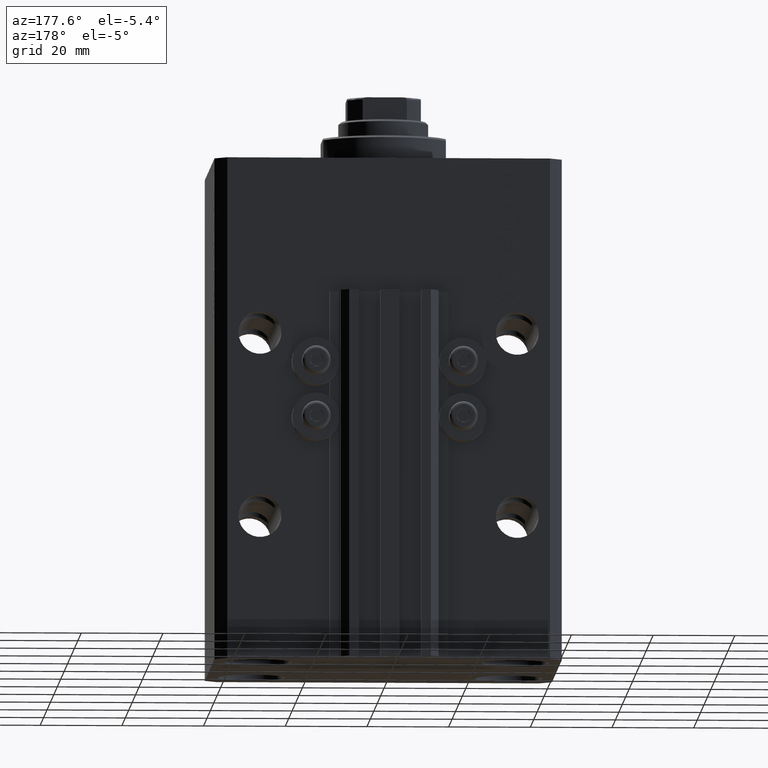
[diagram: clean part render]
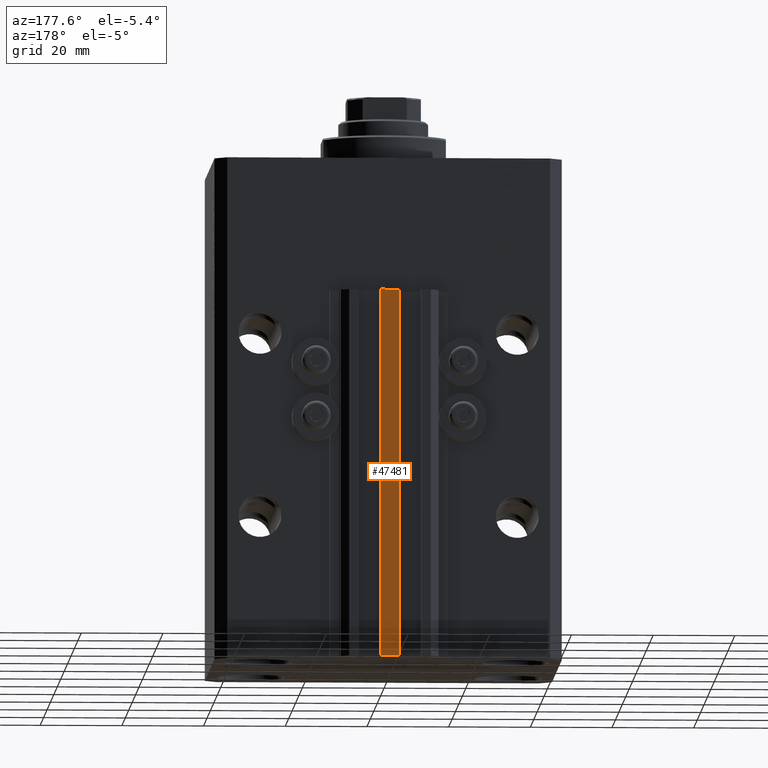
[diagram: same view with one face highlighted and labeled with its STEP entity id]
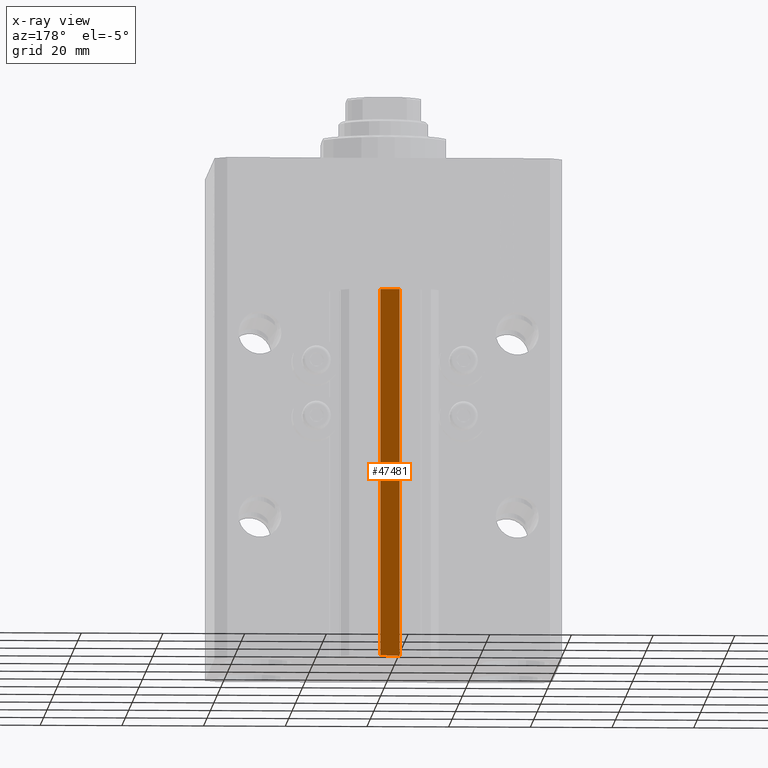
[diagram: x-ray of the same camera — body ghosted, the highlighted face saturated]
A machine part, auxiliary view. The second image highlights one B-rep face of the part: STEP entity #47481.
The next image is the same camera in x-ray: the body ghosted, the highlighted face saturated — about 0% of this face is hidden behind the body in this view.
In plain terms, the highlighted planar face has unit normal (0, -1, 0).
Its self-contained STEP definition (entity closure, byte-faithful):
#1094 = CARTESIAN_POINT ( 'NONE',  ( -2.350000000000003642, 39.50000000000000711, -123.0000000000000000 ) ) ;
#1144 = EDGE_CURVE ( 'NONE', #3527, #40448, #12520, .T. ) ;
#2195 = VECTOR ( 'NONE', #35873, 1000.000000000000000 ) ;
#3527 = VERTEX_POINT ( 'NONE', #31075 ) ;
#6019 = CARTESIAN_POINT ( 'NONE',  ( 2.349999999999999645, 39.50000000000000711, -123.0000000000000000 ) ) ;
#7225 = EDGE_CURVE ( 'NONE', #40448, #44118, #22926, .T. ) ;
#8630 = ORIENTED_EDGE ( 'NONE', *, *, #1144, .F. ) ;
#11950 = CARTESIAN_POINT ( 'NONE',  ( -2.350000000000003642, 39.50000000000000711, -33.00000000000000000 ) ) ;
#12520 = LINE ( 'NONE', #1094, #25245 ) ;
#17144 = CARTESIAN_POINT ( 'NONE',  ( -2.350000000000003642, 39.50000000000000711, -33.00000000000000000 ) ) ;
#19990 = VECTOR ( 'NONE', #34577, 1000.000000000000000 ) ;
#20404 = DIRECTION ( 'NONE',  ( 0.000000000000000000, -0.000000000000000000, -1.000000000000000000 ) ) ;
#20974 = CARTESIAN_POINT ( 'NONE',  ( 2.349999999999999645, 39.50000000000000711, -33.00000000000000000 ) ) ;
#20990 = ORIENTED_EDGE ( 'NONE', *, *, #7225, .F. ) ;
#21568 = VECTOR ( 'NONE', #44333, 1000.000000000000000 ) ;
#22926 = LINE ( 'NONE', #26351, #21568 ) ;
#22931 = FACE_OUTER_BOUND ( 'NONE', #38016, .T. ) ;
#23399 = AXIS2_PLACEMENT_3D ( 'NONE', #31837, #46672, #20404 ) ;
#25245 = VECTOR ( 'NONE', #38064, 1000.000000000000000 ) ;
#26351 = CARTESIAN_POINT ( 'NONE',  ( 2.349999999999999645, 39.50000000000000711, -123.0000000000000000 ) ) ;
#30249 = PLANE ( 'NONE',  #23399 ) ;
#30941 = LINE ( 'NONE', #34818, #19990 ) ;
#31075 = CARTESIAN_POINT ( 'NONE',  ( -2.350000000000003642, 39.50000000000000711, -123.0000000000000000 ) ) ;
#31837 = CARTESIAN_POINT ( 'NONE',  ( -2.350000000000003642, 39.50000000000000711, -123.0000000000000000 ) ) ;
#33555 = VERTEX_POINT ( 'NONE', #11950 ) ;
#34577 = DIRECTION ( 'NONE',  ( 0.000000000000000000, 0.000000000000000000, 1.000000000000000000 ) ) ;
#34818 = CARTESIAN_POINT ( 'NONE',  ( -2.350000000000003642, 39.50000000000000711, -123.0000000000000000 ) ) ;
#35167 = LINE ( 'NONE', #17144, #2195 ) ;
#35356 = EDGE_CURVE ( 'NONE', #3527, #33555, #30941, .T. ) ;
#35873 = DIRECTION ( 'NONE',  ( 1.000000000000000000, 0.000000000000000000, 0.000000000000000000 ) ) ;
#36311 = ORIENTED_EDGE ( 'NONE', *, *, #37704, .T. ) ;
#37704 = EDGE_CURVE ( 'NONE', #33555, #44118, #35167, .T. ) ;
#38016 = EDGE_LOOP ( 'NONE', ( #36311, #20990, #8630, #47315 ) ) ;
#38064 = DIRECTION ( 'NONE',  ( 1.000000000000000000, 0.000000000000000000, 0.000000000000000000 ) ) ;
#40448 = VERTEX_POINT ( 'NONE', #6019 ) ;
#44118 = VERTEX_POINT ( 'NONE', #20974 ) ;
#44333 = DIRECTION ( 'NONE',  ( 0.000000000000000000, 0.000000000000000000, 1.000000000000000000 ) ) ;
#46672 = DIRECTION ( 'NONE',  ( 0.000000000000000000, -1.000000000000000000, 0.000000000000000000 ) ) ;
#47315 = ORIENTED_EDGE ( 'NONE', *, *, #35356, .T. ) ;
#47481 = ADVANCED_FACE ( 'NONE', ( #22931 ), #30249, .F. ) ;